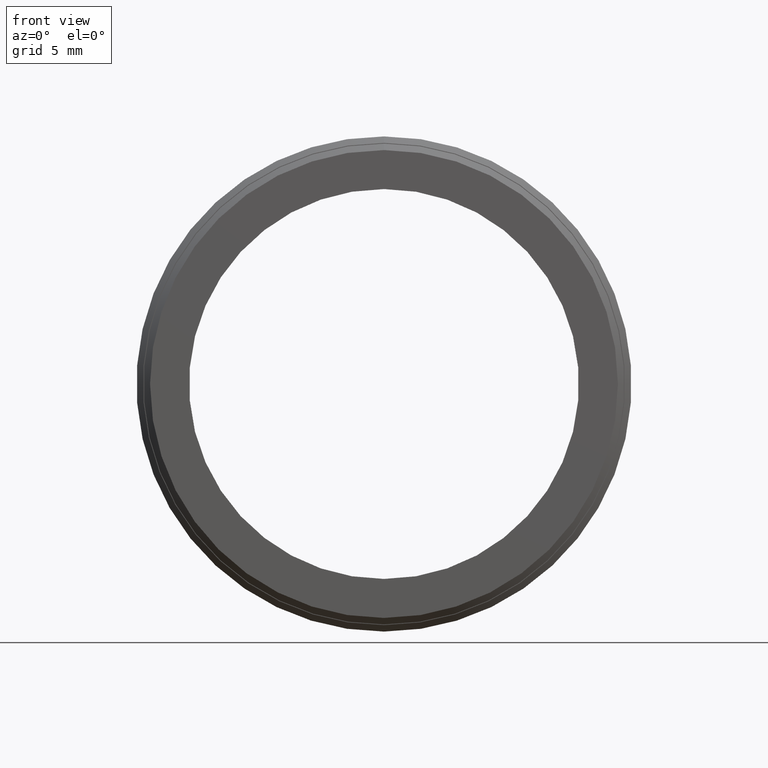
[diagram: clean part render]
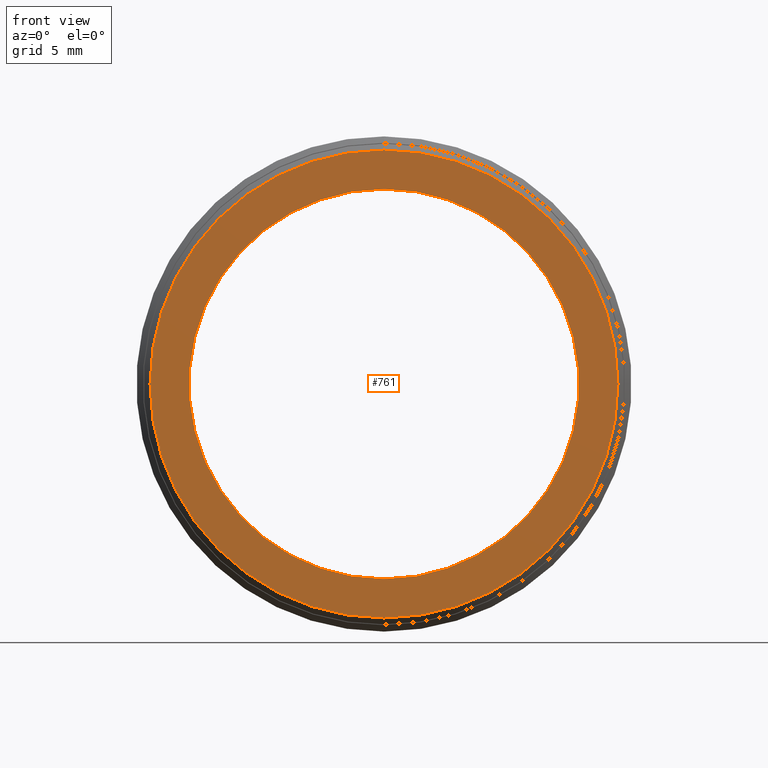
[diagram: same view with one face highlighted and labeled with its STEP entity id]
A machine part, front view. The second image highlights one B-rep face of the part: STEP entity #761.
In plain terms, the highlighted planar face has unit normal (0, -1, -0).
Its self-contained STEP definition (entity closure, byte-faithful):
#1 = DIRECTION ( 'NONE',  ( 0.0000000000000000000, 0.0000000000000000000, -1.000000000000000000 ) ) ;
#12 = PLANE ( 'NONE',  #742 ) ;
#18 = ORIENTED_EDGE ( 'NONE', *, *, #746, .F. ) ;
#33 = DIRECTION ( 'NONE',  ( -0.0000000000000000000, -1.000000000000000000, -0.0000000000000000000 ) ) ;
#34 = DIRECTION ( 'NONE',  ( 0.0000000000000000000, 0.0000000000000000000, -1.000000000000000000 ) ) ;
#35 = CARTESIAN_POINT ( 'NONE',  ( 1.836970198721029600E-015, 0.0000000000000000000, 15.00000000000000000 ) ) ;
#44 = ORIENTED_EDGE ( 'NONE', *, *, #517, .T. ) ;
#70 = DIRECTION ( 'NONE',  ( -0.0000000000000000000, -1.000000000000000000, -0.0000000000000000000 ) ) ;
#94 = CARTESIAN_POINT ( 'NONE',  ( 15.00000000000000000, 0.0000000000000000000, 0.0000000000000000000 ) ) ;
#130 = FACE_BOUND ( 'NONE', #315, .T. ) ;
#161 = CARTESIAN_POINT ( 'NONE',  ( 0.0000000000000000000, 0.0000000000000000000, 0.0000000000000000000 ) ) ;
#171 = CARTESIAN_POINT ( 'NONE',  ( 0.0000000000000000000, 0.0000000000000000000, 0.0000000000000000000 ) ) ;
#183 = AXIS2_PLACEMENT_3D ( 'NONE', #171, #33, #34 ) ;
#221 = VERTEX_POINT ( 'NONE', #802 ) ;
#245 = EDGE_LOOP ( 'NONE', ( #420, #44 ) ) ;
#259 = DIRECTION ( 'NONE',  ( -0.0000000000000000000, -1.000000000000000000, -0.0000000000000000000 ) ) ;
#260 = DIRECTION ( 'NONE',  ( 0.0000000000000000000, 0.0000000000000000000, -1.000000000000000000 ) ) ;
#263 = DIRECTION ( 'NONE',  ( 0.0000000000000000000, -1.000000000000000000, -0.0000000000000000000 ) ) ;
#266 = DIRECTION ( 'NONE',  ( 0.0000000000000000000, 0.0000000000000000000, -1.000000000000000000 ) ) ;
#269 = AXIS2_PLACEMENT_3D ( 'NONE', #161, #259, #260 ) ;
#297 = CIRCLE ( 'NONE', #590, 18.00000000000000400 ) ;
#303 = VERTEX_POINT ( 'NONE', #863 ) ;
#312 = CIRCLE ( 'NONE', #269, 15.00000000000000000 ) ;
#315 = EDGE_LOOP ( 'NONE', ( #18, #874 ) ) ;
#365 = VERTEX_POINT ( 'NONE', #809 ) ;
#374 = CARTESIAN_POINT ( 'NONE',  ( 0.0000000000000000000, 0.0000000000000000000, 0.0000000000000000000 ) ) ;
#420 = ORIENTED_EDGE ( 'NONE', *, *, #793, .T. ) ;
#493 = CARTESIAN_POINT ( 'NONE',  ( 0.0000000000000000000, 0.0000000000000000000, 0.0000000000000000000 ) ) ;
#517 = EDGE_CURVE ( 'NONE', #221, #303, #808, .T. ) ;
#524 = AXIS2_PLACEMENT_3D ( 'NONE', #374, #664, #660 ) ;
#590 = AXIS2_PLACEMENT_3D ( 'NONE', #493, #70, #1 ) ;
#660 = DIRECTION ( 'NONE',  ( 0.0000000000000000000, 0.0000000000000000000, -1.000000000000000000 ) ) ;
#664 = DIRECTION ( 'NONE',  ( -0.0000000000000000000, -1.000000000000000000, -0.0000000000000000000 ) ) ;
#698 = CIRCLE ( 'NONE', #183, 15.00000000000000000 ) ;
#718 = VERTEX_POINT ( 'NONE', #35 ) ;
#721 = EDGE_CURVE ( 'NONE', #718, #365, #698, .T. ) ;
#742 = AXIS2_PLACEMENT_3D ( 'NONE', #94, #263, #266 ) ;
#746 = EDGE_CURVE ( 'NONE', #365, #718, #312, .T. ) ;
#761 = ADVANCED_FACE ( 'NONE', ( #820, #130 ), #12, .T. ) ;
#793 = EDGE_CURVE ( 'NONE', #303, #221, #297, .T. ) ;
#802 = CARTESIAN_POINT ( 'NONE',  ( 2.234980408443920000E-015, 0.0000000000000000000, -18.00000000000000400 ) ) ;
#808 = CIRCLE ( 'NONE', #524, 18.00000000000000400 ) ;
#809 = CARTESIAN_POINT ( 'NONE',  ( 0.0000000000000000000, 0.0000000000000000000, -15.00000000000000000 ) ) ;
#820 = FACE_OUTER_BOUND ( 'NONE', #245, .T. ) ;
#863 = CARTESIAN_POINT ( 'NONE',  ( 0.0000000000000000000, 0.0000000000000000000, 18.00000000000000400 ) ) ;
#874 = ORIENTED_EDGE ( 'NONE', *, *, #721, .F. ) ;